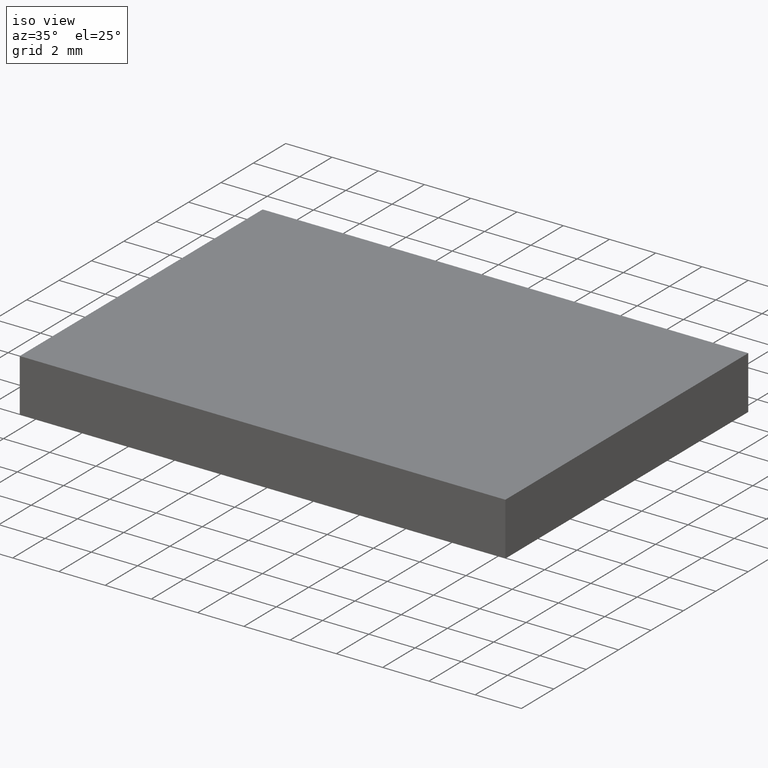
[diagram: clean part render]
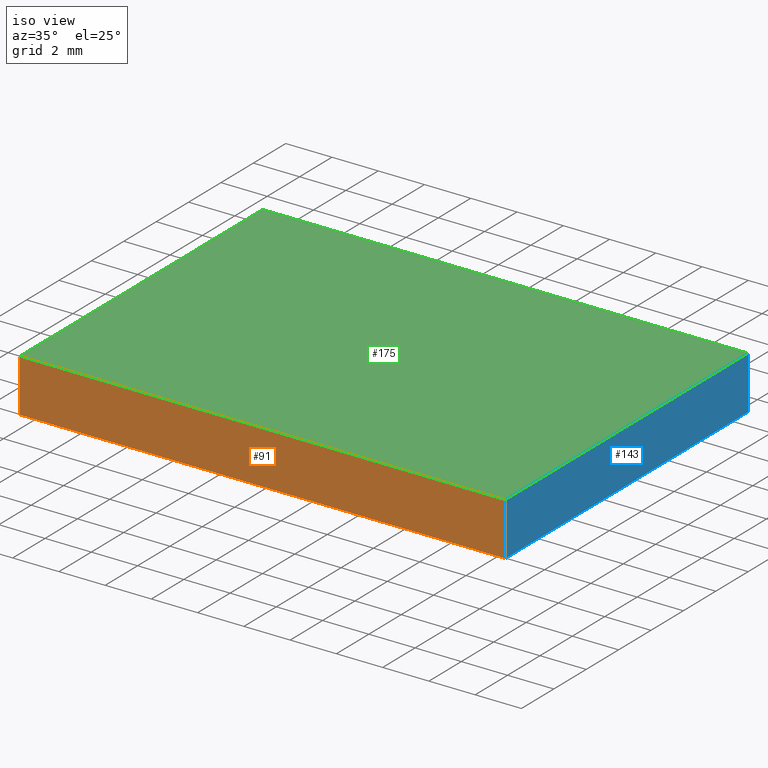
[diagram: same view with three faces highlighted in distinct colors, each labeled with its STEP entity id]
A machine part, iso view with three faces highlighted in distinct colors.
Their STEP definitions:

[orange] entity #91 — the highlighted planar face has unit normal (0, 1, 0).
#24 = EDGE_CURVE ( 'NONE', #86, #195, #114, .T. ) ;
#32 = DIRECTION ( 'NONE',  ( 1.000000000000000000, 0.0000000000000000000, 0.0000000000000000000 ) ) ;
#33 = CARTESIAN_POINT ( 'NONE',  ( 64.80749197114184300, 23.28162091726329700, 2.299999999999999800 ) ) ;
#36 = DIRECTION ( 'NONE',  ( -0.0000000000000000000, -0.0000000000000000000, -1.000000000000000000 ) ) ;
#41 = EDGE_CURVE ( 'NONE', #86, #47, #196, .T. ) ;
#44 = DIRECTION ( 'NONE',  ( 1.000000000000000000, 0.0000000000000000000, 0.0000000000000000000 ) ) ;
#46 = DIRECTION ( 'NONE',  ( 0.0000000000000000000, -0.0000000000000000000, 1.000000000000000000 ) ) ;
#47 = VERTEX_POINT ( 'NONE', #50 ) ;
#48 = DIRECTION ( 'NONE',  ( 0.0000000000000000000, 1.000000000000000000, 0.0000000000000000000 ) ) ;
#49 = CARTESIAN_POINT ( 'NONE',  ( 43.80749197114184300, 23.28162091726329700, 2.299999999999999800 ) ) ;
#50 = CARTESIAN_POINT ( 'NONE',  ( 64.80749197114184300, 23.28162091726329700, 2.299999999999999800 ) ) ;
#62 = ORIENTED_EDGE ( 'NONE', *, *, #199, .T. ) ;
#66 = PLANE ( 'NONE',  #185 ) ;
#67 = FACE_OUTER_BOUND ( 'NONE', #161, .T. ) ;
#71 = CARTESIAN_POINT ( 'NONE',  ( 43.80749197114184300, 23.28162091726329700, 0.0000000000000000000 ) ) ;
#77 = EDGE_CURVE ( 'NONE', #47, #142, #90, .T. ) ;
#82 = VECTOR ( 'NONE', #154, 1000.000000000000000 ) ;
#83 = CARTESIAN_POINT ( 'NONE',  ( 64.80749197114184300, 23.28162091726329700, 0.0000000000000000000 ) ) ;
#86 = VERTEX_POINT ( 'NONE', #49 ) ;
#87 = CARTESIAN_POINT ( 'NONE',  ( 43.80749197114184300, 23.28162091726329700, 2.299999999999999800 ) ) ;
#90 = LINE ( 'NONE', #33, #106 ) ;
#91 = ADVANCED_FACE ( 'NONE', ( #67 ), #66, .F. ) ;
#96 = ORIENTED_EDGE ( 'NONE', *, *, #41, .F. ) ;
#106 = VECTOR ( 'NONE', #36, 1000.000000000000000 ) ;
#108 = VECTOR ( 'NONE', #44, 1000.000000000000000 ) ;
#114 = LINE ( 'NONE', #87, #82 ) ;
#127 = ORIENTED_EDGE ( 'NONE', *, *, #24, .T. ) ;
#138 = CARTESIAN_POINT ( 'NONE',  ( 43.80749197114184300, 23.28162091726329700, 0.0000000000000000000 ) ) ;
#142 = VERTEX_POINT ( 'NONE', #83 ) ;
#150 = CARTESIAN_POINT ( 'NONE',  ( 43.80749197114184300, 23.28162091726329700, 2.299999999999999800 ) ) ;
#151 = CARTESIAN_POINT ( 'NONE',  ( 43.80749197114184300, 23.28162091726329700, 2.299999999999999800 ) ) ;
#154 = DIRECTION ( 'NONE',  ( -0.0000000000000000000, -0.0000000000000000000, -1.000000000000000000 ) ) ;
#161 = EDGE_LOOP ( 'NONE', ( #62, #179, #96, #127 ) ) ;
#166 = VECTOR ( 'NONE', #32, 1000.000000000000000 ) ;
#179 = ORIENTED_EDGE ( 'NONE', *, *, #77, .F. ) ;
#184 = LINE ( 'NONE', #138, #108 ) ;
#185 = AXIS2_PLACEMENT_3D ( 'NONE', #150, #48, #46 ) ;
#195 = VERTEX_POINT ( 'NONE', #71 ) ;
#196 = LINE ( 'NONE', #151, #166 ) ;
#199 = EDGE_CURVE ( 'NONE', #195, #142, #184, .T. ) ;

[blue] entity #143 — the highlighted planar face has unit normal (-1, -0, 0).
#9 = LINE ( 'NONE', #174, #165 ) ;
#11 = EDGE_CURVE ( 'NONE', #113, #168, #45, .T. ) ;
#23 = CARTESIAN_POINT ( 'NONE',  ( 64.80749197114182900, 38.28162091726329700, 0.0000000000000000000 ) ) ;
#33 = CARTESIAN_POINT ( 'NONE',  ( 64.80749197114184300, 23.28162091726329700, 2.299999999999999800 ) ) ;
#36 = DIRECTION ( 'NONE',  ( -0.0000000000000000000, -0.0000000000000000000, -1.000000000000000000 ) ) ;
#40 = CARTESIAN_POINT ( 'NONE',  ( 64.80749197114182900, 38.28162091726329700, 2.299999999999999800 ) ) ;
#45 = LINE ( 'NONE', #181, #88 ) ;
#47 = VERTEX_POINT ( 'NONE', #50 ) ;
#50 = CARTESIAN_POINT ( 'NONE',  ( 64.80749197114184300, 23.28162091726329700, 2.299999999999999800 ) ) ;
#70 = CARTESIAN_POINT ( 'NONE',  ( 64.80749197114182900, 38.28162091726329700, 2.299999999999999800 ) ) ;
#77 = EDGE_CURVE ( 'NONE', #47, #142, #90, .T. ) ;
#83 = CARTESIAN_POINT ( 'NONE',  ( 64.80749197114184300, 23.28162091726329700, 0.0000000000000000000 ) ) ;
#88 = VECTOR ( 'NONE', #133, 1000.000000000000000 ) ;
#90 = LINE ( 'NONE', #33, #106 ) ;
#99 = VECTOR ( 'NONE', #136, 1000.000000000000000 ) ;
#103 = EDGE_LOOP ( 'NONE', ( #134, #146, #109, #128 ) ) ;
#106 = VECTOR ( 'NONE', #36, 1000.000000000000000 ) ;
#109 = ORIENTED_EDGE ( 'NONE', *, *, #119, .F. ) ;
#113 = VERTEX_POINT ( 'NONE', #171 ) ;
#119 = EDGE_CURVE ( 'NONE', #47, #113, #159, .T. ) ;
#126 = AXIS2_PLACEMENT_3D ( 'NONE', #40, #158, #201 ) ;
#128 = ORIENTED_EDGE ( 'NONE', *, *, #77, .T. ) ;
#133 = DIRECTION ( 'NONE',  ( -0.0000000000000000000, -0.0000000000000000000, -1.000000000000000000 ) ) ;
#134 = ORIENTED_EDGE ( 'NONE', *, *, #177, .T. ) ;
#136 = DIRECTION ( 'NONE',  ( -9.251858538542971800E-016, 1.000000000000000000, -0.0000000000000000000 ) ) ;
#140 = PLANE ( 'NONE',  #126 ) ;
#142 = VERTEX_POINT ( 'NONE', #83 ) ;
#143 = ADVANCED_FACE ( 'NONE', ( #194 ), #140, .F. ) ;
#146 = ORIENTED_EDGE ( 'NONE', *, *, #11, .F. ) ;
#158 = DIRECTION ( 'NONE',  ( -1.000000000000000000, -9.251858538542971800E-016, 0.0000000000000000000 ) ) ;
#159 = LINE ( 'NONE', #70, #99 ) ;
#165 = VECTOR ( 'NONE', #183, 1000.000000000000000 ) ;
#168 = VERTEX_POINT ( 'NONE', #23 ) ;
#171 = CARTESIAN_POINT ( 'NONE',  ( 64.80749197114182900, 38.28162091726329700, 2.299999999999999800 ) ) ;
#174 = CARTESIAN_POINT ( 'NONE',  ( 64.80749197114182900, 38.28162091726329700, 0.0000000000000000000 ) ) ;
#177 = EDGE_CURVE ( 'NONE', #142, #168, #9, .T. ) ;
#181 = CARTESIAN_POINT ( 'NONE',  ( 64.80749197114182900, 38.28162091726329700, 2.299999999999999800 ) ) ;
#183 = DIRECTION ( 'NONE',  ( -9.251858538542971800E-016, 1.000000000000000000, -0.0000000000000000000 ) ) ;
#194 = FACE_OUTER_BOUND ( 'NONE', #103, .T. ) ;
#201 = DIRECTION ( 'NONE',  ( 9.251858538542971800E-016, -1.000000000000000000, 0.0000000000000000000 ) ) ;

[green] entity #175 — the highlighted planar face has unit normal (-0, 0, 1).
#2 = PLANE ( 'NONE',  #80 ) ;
#12 = ORIENTED_EDGE ( 'NONE', *, *, #41, .T. ) ;
#14 = EDGE_LOOP ( 'NONE', ( #120, #12, #157, #172 ) ) ;
#31 = VECTOR ( 'NONE', #170, 1000.000000000000000 ) ;
#32 = DIRECTION ( 'NONE',  ( 1.000000000000000000, 0.0000000000000000000, 0.0000000000000000000 ) ) ;
#37 = VERTEX_POINT ( 'NONE', #100 ) ;
#41 = EDGE_CURVE ( 'NONE', #86, #47, #196, .T. ) ;
#47 = VERTEX_POINT ( 'NONE', #50 ) ;
#49 = CARTESIAN_POINT ( 'NONE',  ( 43.80749197114184300, 23.28162091726329700, 2.299999999999999800 ) ) ;
#50 = CARTESIAN_POINT ( 'NONE',  ( 64.80749197114184300, 23.28162091726329700, 2.299999999999999800 ) ) ;
#53 = DIRECTION ( 'NONE',  ( -0.0000000000000000000, 0.0000000000000000000, 1.000000000000000000 ) ) ;
#55 = FACE_OUTER_BOUND ( 'NONE', #14, .T. ) ;
#56 = CARTESIAN_POINT ( 'NONE',  ( 43.80749197114183600, 38.28162091726329700, 2.299999999999999800 ) ) ;
#63 = CARTESIAN_POINT ( 'NONE',  ( 43.80749197114183600, 38.28162091726329700, 2.299999999999999800 ) ) ;
#70 = CARTESIAN_POINT ( 'NONE',  ( 64.80749197114182900, 38.28162091726329700, 2.299999999999999800 ) ) ;
#76 = LINE ( 'NONE', #56, #31 ) ;
#80 = AXIS2_PLACEMENT_3D ( 'NONE', #105, #53, #156 ) ;
#86 = VERTEX_POINT ( 'NONE', #49 ) ;
#99 = VECTOR ( 'NONE', #136, 1000.000000000000000 ) ;
#100 = CARTESIAN_POINT ( 'NONE',  ( 43.80749197114183600, 38.28162091726329700, 2.299999999999999800 ) ) ;
#105 = CARTESIAN_POINT ( 'NONE',  ( 0.0000000000000000000, 0.0000000000000000000, 2.299999999999999800 ) ) ;
#112 = EDGE_CURVE ( 'NONE', #113, #37, #178, .T. ) ;
#113 = VERTEX_POINT ( 'NONE', #171 ) ;
#119 = EDGE_CURVE ( 'NONE', #47, #113, #159, .T. ) ;
#120 = ORIENTED_EDGE ( 'NONE', *, *, #190, .T. ) ;
#136 = DIRECTION ( 'NONE',  ( -9.251858538542971800E-016, 1.000000000000000000, -0.0000000000000000000 ) ) ;
#145 = VECTOR ( 'NONE', #163, 1000.000000000000000 ) ;
#151 = CARTESIAN_POINT ( 'NONE',  ( 43.80749197114184300, 23.28162091726329700, 2.299999999999999800 ) ) ;
#156 = DIRECTION ( 'NONE',  ( 1.000000000000000000, 0.0000000000000000000, 0.0000000000000000000 ) ) ;
#157 = ORIENTED_EDGE ( 'NONE', *, *, #119, .T. ) ;
#159 = LINE ( 'NONE', #70, #99 ) ;
#163 = DIRECTION ( 'NONE',  ( -1.000000000000000000, -0.0000000000000000000, -0.0000000000000000000 ) ) ;
#166 = VECTOR ( 'NONE', #32, 1000.000000000000000 ) ;
#170 = DIRECTION ( 'NONE',  ( 4.625929269271485900E-016, -1.000000000000000000, 0.0000000000000000000 ) ) ;
#171 = CARTESIAN_POINT ( 'NONE',  ( 64.80749197114182900, 38.28162091726329700, 2.299999999999999800 ) ) ;
#172 = ORIENTED_EDGE ( 'NONE', *, *, #112, .T. ) ;
#175 = ADVANCED_FACE ( 'NONE', ( #55 ), #2, .T. ) ;
#178 = LINE ( 'NONE', #63, #145 ) ;
#190 = EDGE_CURVE ( 'NONE', #37, #86, #76, .T. ) ;
#196 = LINE ( 'NONE', #151, #166 ) ;